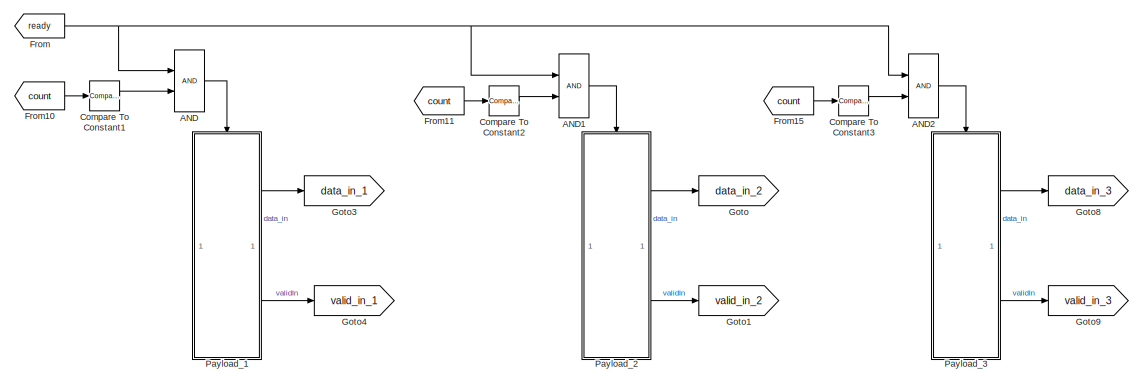
[diagram: root canvas - part 1/6, top left region]
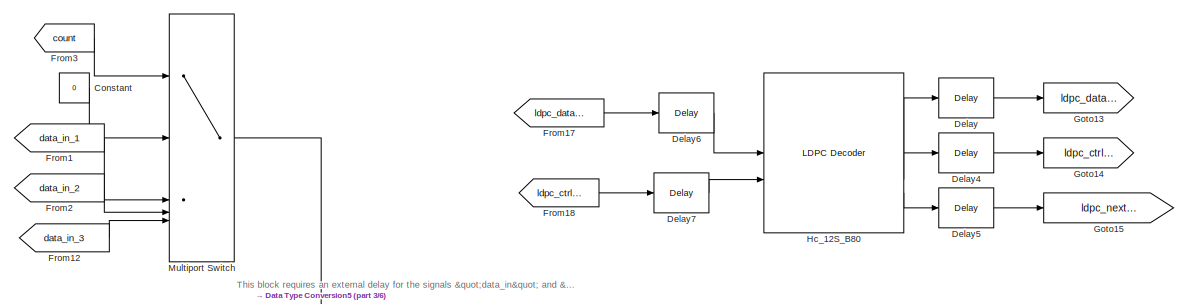
[diagram: root canvas - part 2/6, top right region]
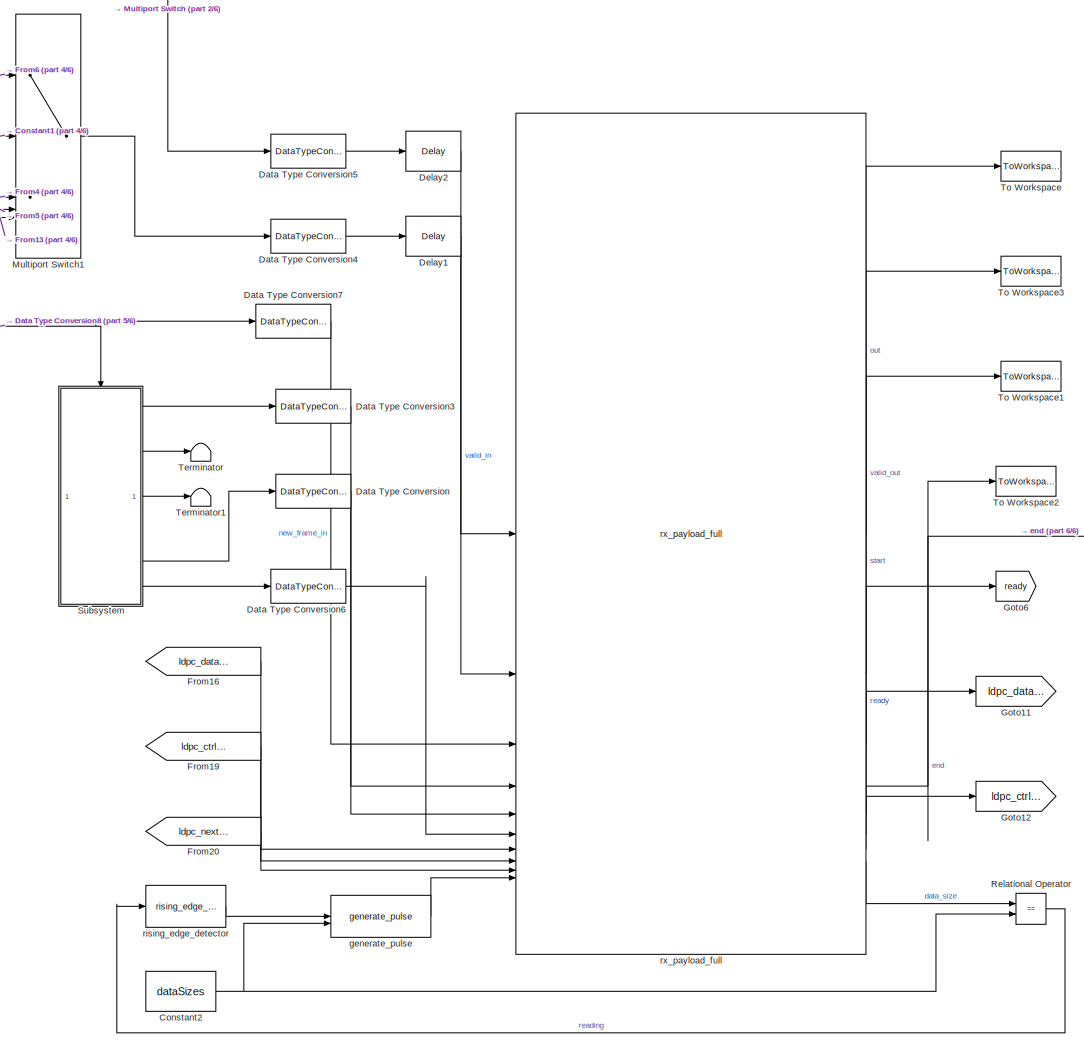
[diagram: root canvas - part 3/6, middle right region]
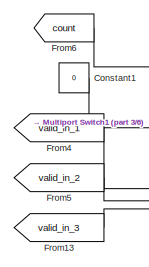
[diagram: root canvas - part 4/6, central region]
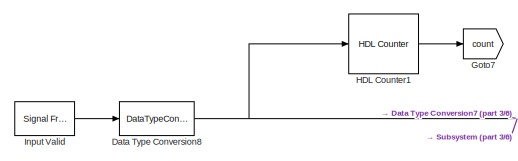
[diagram: root canvas - part 5/6, middle left region]
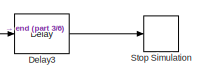
[diagram: root canvas - part 6/6, middle right region]
MODEL slx_9e6b5503295f
KIND model
CONFIG AbsTol = auto
CONFIG EnableMultiTasking = off
CONFIG FixedStep = auto
CONFIG MaxStep = auto
CONFIG MinStep = auto
CONFIG RelTol = 1e-3
CONFIG SampleTimeConstraint = Unconstrained
CONFIG SolverName = FixedStepDiscrete
CONFIG StartTime = 0.0
CONFIG StopTime = stopTime
BLOCK [Logic] AND
  AllPortsSameDT = off
  IconShape = distinctive
  OutDataTypeStr = boolean
BLOCK [Logic] AND1
  AllPortsSameDT = off
  IconShape = distinctive
  OutDataTypeStr = boolean
BLOCK [Logic] AND2
  AllPortsSameDT = off
  IconShape = distinctive
  OutDataTypeStr = boolean
BLOCK [Reference] Compare To Constant1  REF=hdlsllib/Logic and Bit
Operations/Compare
To Constant
  SourceBlock = hdlsllib/Logic and Bit\nOperations/Compare\nTo Constant
  SourceType = Compare To Constant
BLOCK [Reference] Compare To Constant2  REF=hdlsllib/Logic and Bit
Operations/Compare
To Constant
  SourceBlock = hdlsllib/Logic and Bit\nOperations/Compare\nTo Constant
  SourceType = Compare To Constant
BLOCK [Reference] Compare To Constant3  REF=hdlsllib/Logic and Bit
Operations/Compare
To Constant
  SourceBlock = hdlsllib/Logic and Bit\nOperations/Compare\nTo Constant
  SourceType = Compare To Constant
BLOCK [Constant] Constant
  OutDataTypeStr = Inherit: Inherit via back propagation
  SampleTime = -1
  Value = 0
BLOCK [Constant] Constant1
  OutDataTypeStr = Inherit: Inherit via back propagation
  SampleTime = -1
  Value = 0
BLOCK [Constant] Constant2
  OutDataTypeStr = uint32
  SampleTime = 1/CONST.fs
  Value = dataSizes
BLOCK [DataTypeConversion] Data Type Conversion
  OutDataTypeStr = boolean
  RndMeth = Floor
  SaturateOnIntegerOverflow = off
BLOCK [DataTypeConversion] Data Type Conversion3
  OutDataTypeStr = boolean
  RndMeth = Floor
  SaturateOnIntegerOverflow = off
BLOCK [DataTypeConversion] Data Type Conversion4
  OutDataTypeStr = boolean
  RndMeth = Floor
  SaturateOnIntegerOverflow = off
BLOCK [DataTypeConversion] Data Type Conversion5
  OutDataTypeStr = CONST.rxQAMDemodDataType
  RndMeth = Round
  SaturateOnIntegerOverflow = off
BLOCK [DataTypeConversion] Data Type Conversion6
  OutDataTypeStr = boolean
  RndMeth = Floor
  SaturateOnIntegerOverflow = off
BLOCK [DataTypeConversion] Data Type Conversion7
  OutDataTypeStr = boolean
  RndMeth = Floor
  SaturateOnIntegerOverflow = off
BLOCK [DataTypeConversion] Data Type Conversion8
  OutDataTypeStr = boolean
  RndMeth = Floor
  SaturateOnIntegerOverflow = off
BLOCK [Delay] Delay
  InitialCondition = 0
  InputPortMap = u0
  UseCircularBuffer = on
  UserDataPersistent = on
BLOCK [Delay] Delay1
  DelayLength = 3
  InitialCondition = 0
  InputPortMap = u0
  UseCircularBuffer = on
  UserDataPersistent = on
BLOCK [Delay] Delay2
  DelayLength = 3
  InitialCondition = 0
  InputPortMap = u0
  UseCircularBuffer = on
  UserDataPersistent = on
BLOCK [Delay] Delay3
  DelayLength = 5000
  InitialCondition = 0
  InputPortMap = u0
  UseCircularBuffer = on
  UserDataPersistent = on
BLOCK [Delay] Delay4
  InitialCondition = 0
  InputPortMap = u0
  UseCircularBuffer = on
  UserDataPersistent = on
BLOCK [Delay] Delay5
  InitialCondition = 0
  InputPortMap = u0
  UseCircularBuffer = on
  UserDataPersistent = on
BLOCK [Delay] Delay6
  DelayLength = 3
  InitialCondition = 0
  InputPortMap = u0
  UseCircularBuffer = on
  UserDataPersistent = on
BLOCK [Delay] Delay7
  DelayLength = 3
  InitialCondition = 0
  InputPortMap = u0
  UseCircularBuffer = on
  UserDataPersistent = on
BLOCK [From] From
  GotoTag = ready
BLOCK [From] From1
  GotoTag = data_in_1
BLOCK [From] From10
  GotoTag = count
BLOCK [From] From11
  GotoTag = count
BLOCK [From] From12
  GotoTag = data_in_3
BLOCK [From] From13
  GotoTag = valid_in_3
BLOCK [From] From15
  GotoTag = count
BLOCK [From] From16
  GotoTag = ldpc_data_out
BLOCK [From] From17
  GotoTag = ldpc_data_in
BLOCK [From] From18
  GotoTag = ldpc_ctrl_in
BLOCK [From] From19
  GotoTag = ldpc_ctrl_out
BLOCK [From] From2
  GotoTag = data_in_2
BLOCK [From] From20
  GotoTag = ldpc_next_frame_out
BLOCK [From] From3
  GotoTag = count
BLOCK [From] From4
  GotoTag = valid_in_1
BLOCK [From] From5
  GotoTag = valid_in_2
BLOCK [From] From6
  GotoTag = count
BLOCK [Goto] Goto
  GotoTag = data_in_2
BLOCK [Goto] Goto1
  GotoTag = valid_in_2
BLOCK [Goto] Goto11
  GotoTag = ldpc_data_in
BLOCK [Goto] Goto12
  GotoTag = ldpc_ctrl_in
BLOCK [Goto] Goto13
  GotoTag = ldpc_data_out
BLOCK [Goto] Goto14
  GotoTag = ldpc_ctrl_out
BLOCK [Goto] Goto15
  GotoTag = ldpc_next_frame_out
BLOCK [Goto] Goto3
  GotoTag = data_in_1
BLOCK [Goto] Goto4
  GotoTag = valid_in_1
BLOCK [Goto] Goto6
  GotoTag = ready
BLOCK [Goto] Goto7
  GotoTag = count
BLOCK [Goto] Goto8
  GotoTag = data_in_3
BLOCK [Goto] Goto9
  GotoTag = valid_in_3
BLOCK [Reference] HDL Counter1  REF=hdlsllib/Sources/HDL Counter
  SourceBlock = hdlsllib/Sources/HDL Counter
  SourceType = HDL Counter
BLOCK [Reference] Hc_12S_B80  REF=whdledac/LDPC Decoder
  SourceBlock = whdledac/LDPC Decoder
  SourceType = LDPC Decoder
BLOCK [Reference] Input Valid  REF=dspsrcs4/Signal From
Workspace
  SourceBlock = dspsrcs4/Signal From\nWorkspace
  SourceType = Signal From Workspace
BLOCK [MultiPortSwitch] Multiport Switch
  DataPortOrder = Zero-based contiguous
  InputSameDT = off
  Inputs = 4
  SaturateOnIntegerOverflow = off
  zeroidx = on
BLOCK [MultiPortSwitch] Multiport Switch1
  DataPortOrder = Zero-based contiguous
  InputSameDT = off
  Inputs = 4
  SaturateOnIntegerOverflow = off
  zeroidx = on
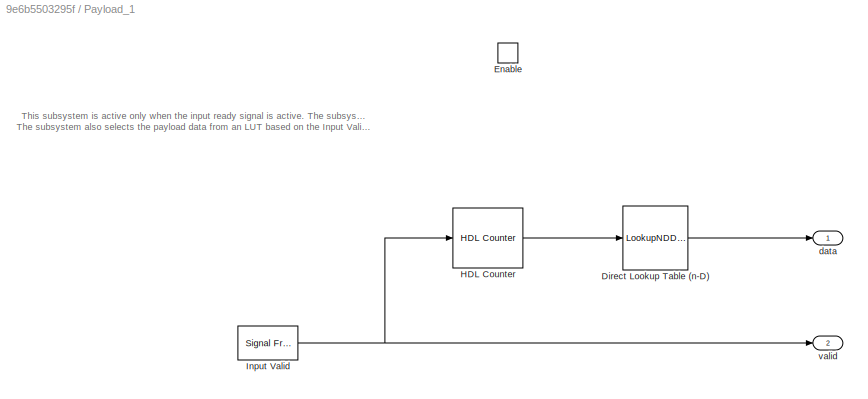
BLOCK [SubSystem] Payload_1
  TreatAsAtomicUnit = on
BLOCK [LookupNDDirect] Payload_1/Direct Lookup Table (n-D)
  DiagnosticForOutOfRangeInput = Error
  NumberOfTableDimensions = 1
  Table = payloadRxLLR{1}
  TableDataTypeStr = double
BLOCK [EnablePort] Payload_1/Enable
BLOCK [Reference] Payload_1/HDL Counter  REF=hdlsllib/Sources/HDL Counter
  SourceBlock = hdlsllib/Sources/HDL Counter
  SourceType = HDL Counter
BLOCK [Reference] Payload_1/Input Valid  REF=dspsrcs4/Signal From
Workspace
  SourceBlock = dspsrcs4/Signal From\nWorkspace
  SourceType = Signal From Workspace
BLOCK [Outport] Payload_1/data
  InitialOutput = 0
  VectorParamsAs1DForOutWhenUnconnected = off
BLOCK [Outport] Payload_1/valid
  InitialOutput = 0
  Port = 2
  VectorParamsAs1DForOutWhenUnconnected = off
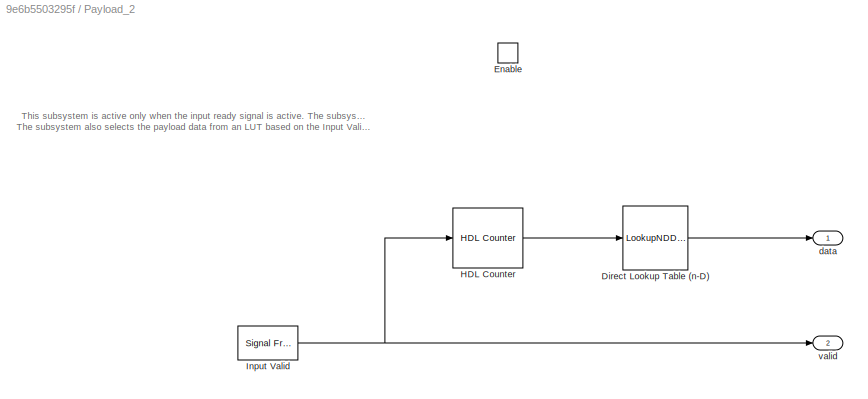
BLOCK [SubSystem] Payload_2
  TreatAsAtomicUnit = on
BLOCK [LookupNDDirect] Payload_2/Direct Lookup Table (n-D)
  DiagnosticForOutOfRangeInput = Error
  NumberOfTableDimensions = 1
  Table = payloadRxLLR{2}
  TableDataTypeStr = double
BLOCK [EnablePort] Payload_2/Enable
BLOCK [Reference] Payload_2/HDL Counter  REF=hdlsllib/Sources/HDL Counter
  SourceBlock = hdlsllib/Sources/HDL Counter
  SourceType = HDL Counter
BLOCK [Reference] Payload_2/Input Valid  REF=dspsrcs4/Signal From
Workspace
  SourceBlock = dspsrcs4/Signal From\nWorkspace
  SourceType = Signal From Workspace
BLOCK [Outport] Payload_2/data
  InitialOutput = 0
  VectorParamsAs1DForOutWhenUnconnected = off
BLOCK [Outport] Payload_2/valid
  InitialOutput = 0
  Port = 2
  VectorParamsAs1DForOutWhenUnconnected = off
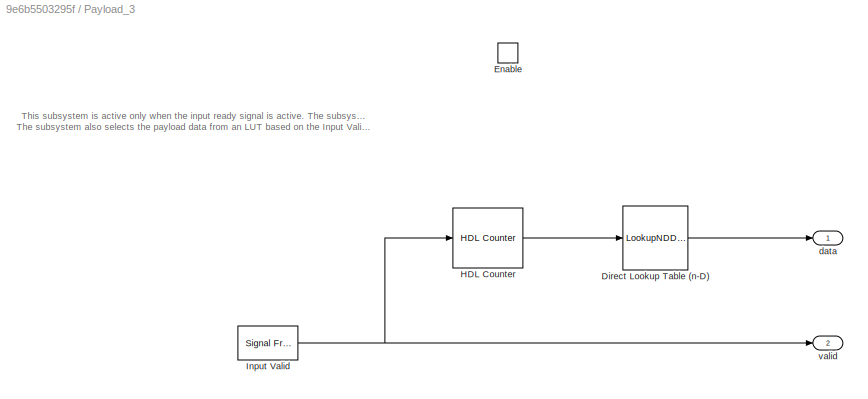
BLOCK [SubSystem] Payload_3
  TreatAsAtomicUnit = on
BLOCK [LookupNDDirect] Payload_3/Direct Lookup Table (n-D)
  DiagnosticForOutOfRangeInput = Error
  NumberOfTableDimensions = 1
  Table = payloadRxLLR{3}
  TableDataTypeStr = double
BLOCK [EnablePort] Payload_3/Enable
BLOCK [Reference] Payload_3/HDL Counter  REF=hdlsllib/Sources/HDL Counter
  SourceBlock = hdlsllib/Sources/HDL Counter
  SourceType = HDL Counter
BLOCK [Reference] Payload_3/Input Valid  REF=dspsrcs4/Signal From
Workspace
  SourceBlock = dspsrcs4/Signal From\nWorkspace
  SourceType = Signal From Workspace
BLOCK [Outport] Payload_3/data
  InitialOutput = 0
  VectorParamsAs1DForOutWhenUnconnected = off
BLOCK [Outport] Payload_3/valid
  InitialOutput = 0
  Port = 2
  VectorParamsAs1DForOutWhenUnconnected = off
BLOCK [RelationalOperator] Relational Operator
  InputSameDT = off
  Operator = ==
  OutDataTypeStr = boolean
BLOCK [Stop] Stop Simulation
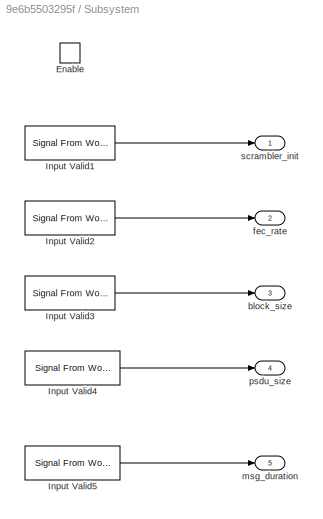
BLOCK [SubSystem] Subsystem
BLOCK [EnablePort] Subsystem/Enable
BLOCK [Reference] Subsystem/Input Valid1  REF=dspsrcs4/Signal From
Workspace
  SourceBlock = dspsrcs4/Signal From\nWorkspace
  SourceType = Signal From Workspace
BLOCK [Reference] Subsystem/Input Valid2  REF=dspsrcs4/Signal From
Workspace
  SourceBlock = dspsrcs4/Signal From\nWorkspace
  SourceType = Signal From Workspace
BLOCK [Reference] Subsystem/Input Valid3  REF=dspsrcs4/Signal From
Workspace
  SourceBlock = dspsrcs4/Signal From\nWorkspace
  SourceType = Signal From Workspace
BLOCK [Reference] Subsystem/Input Valid4  REF=dspsrcs4/Signal From
Workspace
  SourceBlock = dspsrcs4/Signal From\nWorkspace
  SourceType = Signal From Workspace
BLOCK [Reference] Subsystem/Input Valid5  REF=dspsrcs4/Signal From
Workspace
  SourceBlock = dspsrcs4/Signal From\nWorkspace
  SourceType = Signal From Workspace
BLOCK [Outport] Subsystem/block_size
  Port = 3
BLOCK [Outport] Subsystem/fec_rate
  Port = 2
BLOCK [Outport] Subsystem/msg_duration
  Port = 5
  VectorParamsAs1DForOutWhenUnconnected = off
BLOCK [Outport] Subsystem/psdu_size
  Port = 4
BLOCK [Outport] Subsystem/scrambler_init
BLOCK [Terminator] Terminator
BLOCK [Terminator] Terminator1
BLOCK [ToWorkspace] To Workspace
  MaxDataPoints = inf
  SampleTime = 1/CONST.fs
  Save2DSignal = 2-D array (concatenate along first dimension)
  VariableName = dataOut
BLOCK [ToWorkspace] To Workspace1
  MaxDataPoints = inf
  SampleTime = 1/CONST.fs
  Save2DSignal = 2-D array (concatenate along first dimension)
  VariableName = startOut
BLOCK [ToWorkspace] To Workspace2
  MaxDataPoints = inf
  SampleTime = 1/CONST.fs
  Save2DSignal = 2-D array (concatenate along first dimension)
  VariableName = endOut
BLOCK [ToWorkspace] To Workspace3
  MaxDataPoints = inf
  SampleTime = 1/CONST.fs
  Save2DSignal = 2-D array (concatenate along first dimension)
  VariableName = validOut
BLOCK [Reference] generate_pulse  REF=HDL_ieee_8021513/generate_pulse
  SourceBlock = HDL_ieee_8021513/generate_pulse
  SourceProductName = HDL IEEE 8021513
  SourceType = SubSystem
BLOCK [Reference] rising_edge_detector  REF=HDL_ieee_8021513/rising_edge_detector
  SourceBlock = HDL_ieee_8021513/rising_edge_detector
  SourceProductName = HDL IEEE 8021513
  SourceType = SubSystem
BLOCK [Reference] rx_payload_full  REF=HDL_ieee_8021513/rx_payload_full
  SourceBlock = HDL_ieee_8021513/rx_payload_full
  SourceProductName = HDL IEEE 8021513
  SourceType = SubSystem
ANNOTATION (root): This block requires an external delay for the signals "data_in" and "valid_in"
ANNOTATION Payload_1: This subsystem is active only when the input ready signal is active. The subsystem selects the Input Valid value and outputs the valid signal. The subsystem also selects the payload data from an LUT based on the Input Valid signal and outputs it as data signal.
ANNOTATION Payload_2: This subsystem is active only when the input ready signal is active. The subsystem selects the Input Valid value and outputs the valid signal. The subsystem also selects the payload data from an LUT based on the Input Valid signal and outputs it as data signal.
ANNOTATION Payload_3: This subsystem is active only when the input ready signal is active. The subsystem selects the Input Valid value and outputs the valid signal. The subsystem also selects the payload data from an LUT based on the Input Valid signal and outputs it as data signal.
LINE AND1:1 -> Payload_2:enable
LINE AND2:1 -> Payload_3:enable
LINE AND:1 -> Payload_1:enable
LINE Compare To Constant1:1 -> AND:2
LINE Compare To Constant2:1 -> AND1:2
LINE Compare To Constant3:1 -> AND2:2
LINE Constant1:1 -> Multiport Switch1:2
NET Constant2:1 -> Relational Operator:2, generate_pulse:2
LINE Constant:1 -> Multiport Switch:2
LINE Data Type Conversion3:1 -> rx_payload_full:4
LINE Data Type Conversion4:1 -> Delay1:1
LINE Data Type Conversion5:1 -> Delay2:1
LINE Data Type Conversion6:1 -> rx_payload_full:6
LINE Data Type Conversion7:1 -> rx_payload_full:3
NET Data Type Conversion8:1 -> Data Type Conversion7:1, HDL Counter1:1, Subsystem:enable
LINE Data Type Conversion:1 -> rx_payload_full:5
LINE Delay1:1 -> rx_payload_full:2
LINE Delay2:1 -> rx_payload_full:1
LINE Delay3:1 -> Stop Simulation:1
LINE Delay4:1 -> Goto14:1
LINE Delay5:1 -> Goto15:1
LINE Delay6:1 -> Hc_12S_B80:1
LINE Delay7:1 -> Hc_12S_B80:2
LINE Delay:1 -> Goto13:1
LINE From10:1 -> Compare To Constant1:1
LINE From11:1 -> Compare To Constant2:1
LINE From12:1 -> Multiport Switch:5
LINE From13:1 -> Multiport Switch1:5
LINE From15:1 -> Compare To Constant3:1
LINE From16:1 -> rx_payload_full:7
LINE From17:1 -> Delay6:1
LINE From18:1 -> Delay7:1
LINE From19:1 -> rx_payload_full:8
LINE From1:1 -> Multiport Switch:3
LINE From20:1 -> rx_payload_full:9
LINE From2:1 -> Multiport Switch:4
LINE From3:1 -> Multiport Switch:1
LINE From4:1 -> Multiport Switch1:3
LINE From5:1 -> Multiport Switch1:4
LINE From6:1 -> Multiport Switch1:1
NET From:1 -> AND1:1, AND2:1, AND:1
LINE HDL Counter1:1 -> Goto7:1
LINE Hc_12S_B80:1 -> Delay:1
LINE Hc_12S_B80:2 -> Delay4:1
LINE Hc_12S_B80:3 -> Delay5:1
LINE Input Valid:1 -> Data Type Conversion8:1
LINE Multiport Switch1:1 -> Data Type Conversion4:1
LINE Multiport Switch:1 -> Data Type Conversion5:1
LINE Payload_1/Direct Lookup Table (n-D):1 -> Payload_1/data:1
LINE Payload_1/HDL Counter:1 -> Payload_1/Direct Lookup Table (n-D):1
NET Payload_1/Input Valid:1 -> Payload_1/HDL Counter:1, Payload_1/valid:1
LINE Payload_1:1 -> Goto3:1
LINE Payload_1:2 -> Goto4:1
LINE Payload_2/Direct Lookup Table (n-D):1 -> Payload_2/data:1
LINE Payload_2/HDL Counter:1 -> Payload_2/Direct Lookup Table (n-D):1
NET Payload_2/Input Valid:1 -> Payload_2/HDL Counter:1, Payload_2/valid:1
LINE Payload_2:1 -> Goto:1
LINE Payload_2:2 -> Goto1:1
LINE Payload_3/Direct Lookup Table (n-D):1 -> Payload_3/data:1
LINE Payload_3/HDL Counter:1 -> Payload_3/Direct Lookup Table (n-D):1
NET Payload_3/Input Valid:1 -> Payload_3/HDL Counter:1, Payload_3/valid:1
LINE Payload_3:1 -> Goto8:1
LINE Payload_3:2 -> Goto9:1
LINE Relational Operator:1 -> rising_edge_detector:1
LINE Subsystem/Input Valid1:1 -> Subsystem/scrambler_init:1
LINE Subsystem/Input Valid2:1 -> Subsystem/fec_rate:1
LINE Subsystem/Input Valid3:1 -> Subsystem/block_size:1
LINE Subsystem/Input Valid4:1 -> Subsystem/psdu_size:1
LINE Subsystem/Input Valid5:1 -> Subsystem/msg_duration:1
LINE Subsystem:1 -> Data Type Conversion3:1
LINE Subsystem:2 -> Terminator:1
LINE Subsystem:3 -> Terminator1:1
LINE Subsystem:4 -> Data Type Conversion:1
LINE Subsystem:5 -> Data Type Conversion6:1
LINE generate_pulse:1 -> rx_payload_full:10
LINE rising_edge_detector:1 -> generate_pulse:1
LINE rx_payload_full:1 -> To Workspace:1
LINE rx_payload_full:2 -> To Workspace3:1
LINE rx_payload_full:3 -> To Workspace1:1
NET rx_payload_full:4 -> Delay3:1, To Workspace2:1
LINE rx_payload_full:5 -> Goto6:1
LINE rx_payload_full:6 -> Goto11:1
LINE rx_payload_full:7 -> Goto12:1
LINE rx_payload_full:8 -> Relational Operator:1
note: NET lines group one-source signal fan-out (src -> all destinations, sorted); 1:1 wires keep LINE
